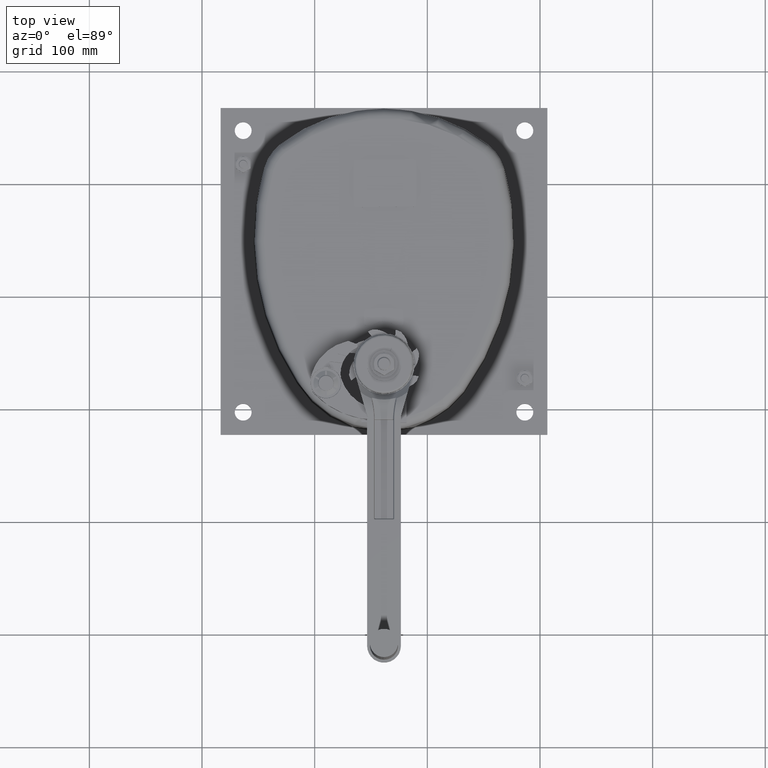
[diagram: clean part render]
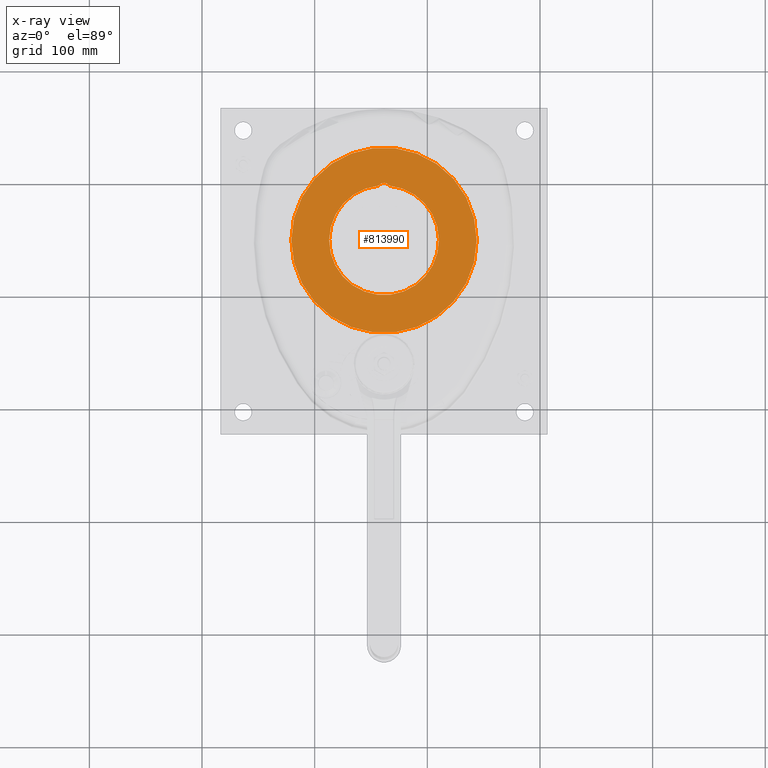
[diagram: x-ray — body ghosted, one internal face saturated and labeled with its STEP entity id]
A machine part, top view, then the same camera in x-ray: the body is ghosted and one INTERNAL B-rep face — a face not visible from any outside direction — is saturated and labeled: STEP entity #813990.
In plain terms, the highlighted planar face has unit normal (0, 0, -1).
Its self-contained STEP definition (entity closure, byte-faithful):
#813450=CARTESIAN_POINT('',(227.267949192431,172.5,-114.));
#813460=VERTEX_POINT('',#813450);
#813490=CARTESIAN_POINT('',(145.,172.5,-114.));
#813500=DIRECTION('',(0.,0.,1.));
#813510=DIRECTION('',(1.,-2.98372437868011E-16,0.));
#813520=AXIS2_PLACEMENT_3D('',#813490,#813500,#813510);
#813530=CIRCLE('',#813520,82.2679491924312);
#813540=CARTESIAN_POINT('',(62.7320508075688,172.5,-114.));
#813550=VERTEX_POINT('',#813540);
#813560=EDGE_CURVE('',#813550,#813460,#813530,.T.);
#813690=CARTESIAN_POINT('',(209.169872981078,172.5,-114.));
#813700=DIRECTION('',(0.,-0.,-1.));
#813710=DIRECTION('',(1.,-2.98372437868011E-16,0.));
#813720=AXIS2_PLACEMENT_3D('',#813690,#813700,#813710);
#813730=PLANE('',#813720);
#813740=CARTESIAN_POINT('',(145.,217.5,-114.));
#813750=DIRECTION('',(0.,0.,-1.));
#813760=DIRECTION('',(-1.,2.98372437868011E-16,0.));
#813770=AXIS2_PLACEMENT_3D('',#813740,#813750,#813760);
#813780=CIRCLE('',#813770,6.);
#813790=CARTESIAN_POINT('',(140.117155988683,220.986808621239,-114.));
#813800=VERTEX_POINT('',#813790);
#813810=CARTESIAN_POINT('',(149.882844011317,220.986808621239,-114.));
#813820=VERTEX_POINT('',#813810);
#813830=EDGE_CURVE('',#813800,#813820,#813780,.T.);
#813840=ORIENTED_EDGE('',*,*,#813830,.F.);
#813850=CARTESIAN_POINT('',(145.,172.5,-114.));
#813860=DIRECTION('',(0.,0.,1.));
#813870=DIRECTION('',(1.,-2.98372437868011E-16,0.));
#813880=AXIS2_PLACEMENT_3D('',#813850,#813860,#813870);
#813890=CIRCLE('',#813880,48.7320508075689);
#813900=EDGE_CURVE('',#813800,#813820,#813890,.T.);
#813910=ORIENTED_EDGE('',*,*,#813900,.T.);
#813920=EDGE_LOOP('',(#813910,#813840));
#813930=FACE_BOUND('',#813920,.T.);
#813940=EDGE_CURVE('',#813460,#813550,#813530,.T.);
#813950=ORIENTED_EDGE('',*,*,#813940,.F.);
#813960=ORIENTED_EDGE('',*,*,#813560,.F.);
#813970=EDGE_LOOP('',(#813960,#813950));
#813980=FACE_OUTER_BOUND('',#813970,.T.);
#813990=ADVANCED_FACE('',(#813930,#813980),#813730,.T.);